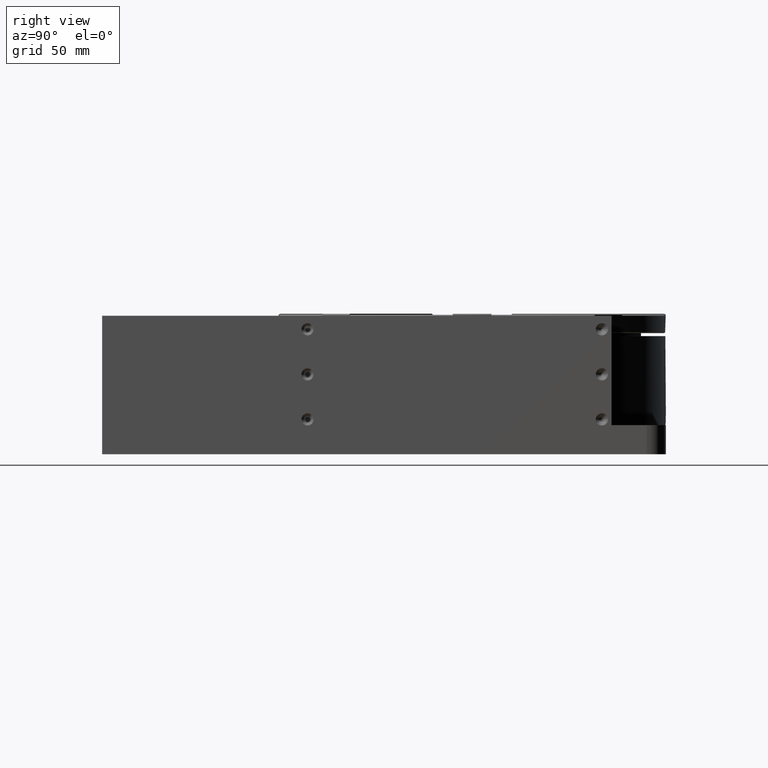
[diagram: clean part render]
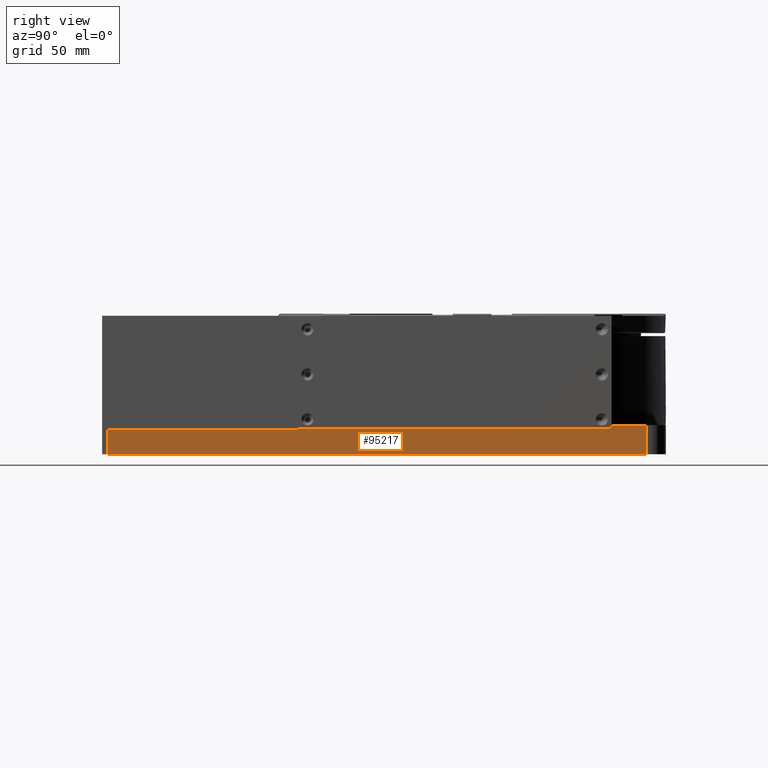
[diagram: same view with one face highlighted and labeled with its STEP entity id]
A machine part, right view. The second image highlights one B-rep face of the part: STEP entity #95217.
In plain terms, the highlighted planar face has unit normal (-1, 0, 0).
Its self-contained STEP definition (entity closure, byte-faithful):
#6304 = LINE ( 'NONE', #166144, #57185 ) ;
#7067 = EDGE_CURVE ( 'NONE', #164825, #37281, #63846, .T. ) ;
#8403 = CARTESIAN_POINT ( 'NONE',  ( 73.93183586153250531, -75.46836509788509773, 233.0000000000000000 ) ) ;
#8610 = DIRECTION ( 'NONE',  ( 0.000000000000000000, -1.000000000000000000, 0.000000000000000000 ) ) ;
#10378 = FACE_OUTER_BOUND ( 'NONE', #59011, .T. ) ;
#12222 = EDGE_CURVE ( 'NONE', #120172, #26390, #17624, .T. ) ;
#16865 = VECTOR ( 'NONE', #121474, 1000.000000000000000 ) ;
#17624 = LINE ( 'NONE', #32130, #111470 ) ;
#23885 = ORIENTED_EDGE ( 'NONE', *, *, #73220, .T. ) ;
#26390 = VERTEX_POINT ( 'NONE', #110716 ) ;
#32130 = CARTESIAN_POINT ( 'NONE',  ( 73.93183586153250531, -173.4683650978850267, 220.5000000000000000 ) ) ;
#37281 = VERTEX_POINT ( 'NONE', #133785 ) ;
#37404 = CARTESIAN_POINT ( 'NONE',  ( 73.93183586153250531, 86.53163490211490227, 235.5000000000000000 ) ) ;
#52349 = VECTOR ( 'NONE', #109635, 1000.000000000000000 ) ;
#57185 = VECTOR ( 'NONE', #94393, 1000.000000000000000 ) ;
#58407 = LINE ( 'NONE', #71948, #128251 ) ;
#59011 = EDGE_LOOP ( 'NONE', ( #23885, #65914, #124932, #131929, #81565, #172928, #172705, #143930 ) ) ;
#60154 = EDGE_CURVE ( 'NONE', #180575, #164825, #136047, .T. ) ;
#60957 = CARTESIAN_POINT ( 'NONE',  ( 73.93183586153250531, -173.4683650978850267, 220.5000000000000000 ) ) ;
#62438 = CARTESIAN_POINT ( 'NONE',  ( 73.93183586153250531, 86.53163490211490227, 233.5000000000000000 ) ) ;
#63846 = LINE ( 'NONE', #79283, #110608 ) ;
#65914 = ORIENTED_EDGE ( 'NONE', *, *, #106096, .T. ) ;
#68526 = VERTEX_POINT ( 'NONE', #8403 ) ;
#68534 = VERTEX_POINT ( 'NONE', #140091 ) ;
#70187 = DIRECTION ( 'NONE',  ( 0.000000000000000000, 0.000000000000000000, -1.000000000000000000 ) ) ;
#70376 = DIRECTION ( 'NONE',  ( 0.000000000000000000, 0.000000000000000000, 1.000000000000000000 ) ) ;
#71948 = CARTESIAN_POINT ( 'NONE',  ( 73.93183586153250531, 86.53163490211490227, 235.5000000000000000 ) ) ;
#73220 = EDGE_CURVE ( 'NONE', #120172, #68534, #81521, .T. ) ;
#79283 = CARTESIAN_POINT ( 'NONE',  ( 73.93183586153250531, -75.46836509788509773, 233.5000000000000000 ) ) ;
#80590 = CARTESIAN_POINT ( 'NONE',  ( 73.93183586153250531, 114.5316349021150018, 220.5000000000000000 ) ) ;
#81521 = LINE ( 'NONE', #80590, #52349 ) ;
#81565 = ORIENTED_EDGE ( 'NONE', *, *, #7067, .T. ) ;
#85860 = DIRECTION ( 'NONE',  ( -1.000000000000000000, 0.000000000000000000, 0.000000000000000000 ) ) ;
#94084 = DIRECTION ( 'NONE',  ( 0.000000000000000000, -1.000000000000000000, 0.000000000000000000 ) ) ;
#94393 = DIRECTION ( 'NONE',  ( 0.000000000000000000, 0.000000000000000000, 1.000000000000000000 ) ) ;
#95217 = ADVANCED_FACE ( 'NONE', ( #10378 ), #189511, .F. ) ;
#97517 = EDGE_CURVE ( 'NONE', #37281, #68526, #159308, .T. ) ;
#100059 = VERTEX_POINT ( 'NONE', #110486 ) ;
#106096 = EDGE_CURVE ( 'NONE', #68534, #100059, #6304, .T. ) ;
#109635 = DIRECTION ( 'NONE',  ( 0.000000000000000000, 1.000000000000000000, 0.000000000000000000 ) ) ;
#110486 = CARTESIAN_POINT ( 'NONE',  ( 73.93183586153250531, 104.5316349021150018, 235.5000000000000000 ) ) ;
#110529 = CARTESIAN_POINT ( 'NONE',  ( 73.93183586153250531, -90.46836509788499825, 233.0000000000000000 ) ) ;
#110608 = VECTOR ( 'NONE', #8610, 1000.000000000000000 ) ;
#110716 = CARTESIAN_POINT ( 'NONE',  ( 73.93183586153250531, -173.4683650978850267, 233.0000000000000000 ) ) ;
#111470 = VECTOR ( 'NONE', #119254, 1000.000000000000000 ) ;
#113946 = CARTESIAN_POINT ( 'NONE',  ( 73.93183586153250531, 12.03163490211489872, 220.5000000000000000 ) ) ;
#119254 = DIRECTION ( 'NONE',  ( 0.000000000000000000, 0.000000000000000000, 1.000000000000000000 ) ) ;
#120172 = VERTEX_POINT ( 'NONE', #60957 ) ;
#121474 = DIRECTION ( 'NONE',  ( 0.000000000000000000, 0.000000000000000000, -1.000000000000000000 ) ) ;
#122732 = AXIS2_PLACEMENT_3D ( 'NONE', #113946, #85860, #70376 ) ;
#124932 = ORIENTED_EDGE ( 'NONE', *, *, #188675, .T. ) ;
#126033 = LINE ( 'NONE', #110529, #159664 ) ;
#128251 = VECTOR ( 'NONE', #149381, 1000.000000000000000 ) ;
#131929 = ORIENTED_EDGE ( 'NONE', *, *, #60154, .T. ) ;
#133785 = CARTESIAN_POINT ( 'NONE',  ( 73.93183586153250531, -75.46836509788509773, 233.5000000000000000 ) ) ;
#135250 = EDGE_CURVE ( 'NONE', #68526, #26390, #126033, .T. ) ;
#136047 = LINE ( 'NONE', #62438, #16865 ) ;
#140091 = CARTESIAN_POINT ( 'NONE',  ( 73.93183586153250531, 104.5316349021150018, 220.5000000000000000 ) ) ;
#143930 = ORIENTED_EDGE ( 'NONE', *, *, #12222, .F. ) ;
#149381 = DIRECTION ( 'NONE',  ( 0.000000000000000000, -1.000000000000000000, 0.000000000000000000 ) ) ;
#159308 = LINE ( 'NONE', #188391, #172669 ) ;
#159664 = VECTOR ( 'NONE', #94084, 1000.000000000000000 ) ;
#164825 = VERTEX_POINT ( 'NONE', #177294 ) ;
#166144 = CARTESIAN_POINT ( 'NONE',  ( 73.93183586153250531, 104.5316349021150018, 220.5000000000000000 ) ) ;
#172669 = VECTOR ( 'NONE', #70187, 1000.000000000000000 ) ;
#172705 = ORIENTED_EDGE ( 'NONE', *, *, #135250, .T. ) ;
#172928 = ORIENTED_EDGE ( 'NONE', *, *, #97517, .T. ) ;
#177294 = CARTESIAN_POINT ( 'NONE',  ( 73.93183586153250531, 86.53163490211490227, 233.5000000000000000 ) ) ;
#180575 = VERTEX_POINT ( 'NONE', #37404 ) ;
#188391 = CARTESIAN_POINT ( 'NONE',  ( 73.93183586153250531, -75.46836509788509773, 233.0000000000000000 ) ) ;
#188675 = EDGE_CURVE ( 'NONE', #100059, #180575, #58407, .T. ) ;
#189511 = PLANE ( 'NONE',  #122732 ) ;